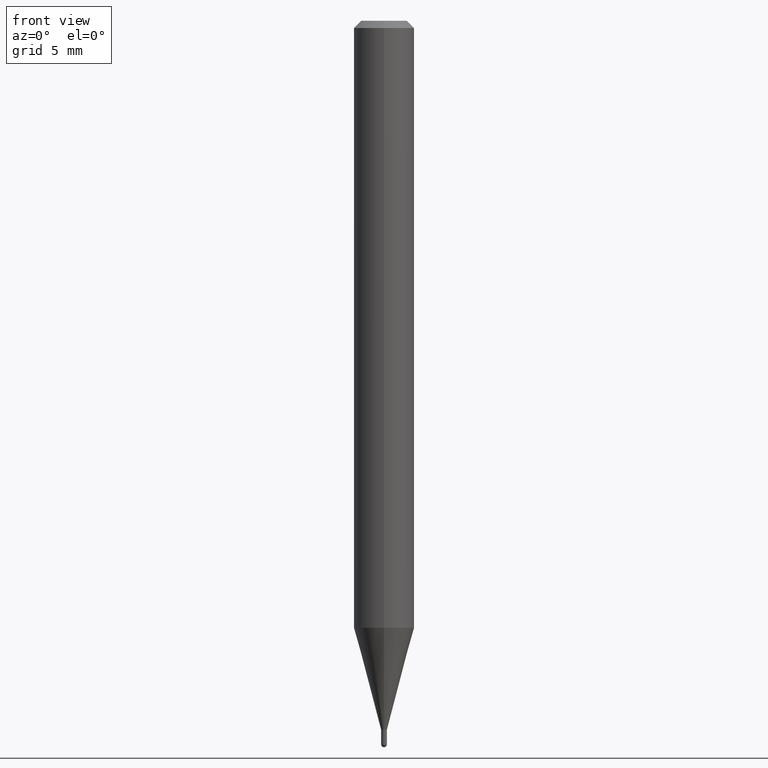
[diagram: clean part render]
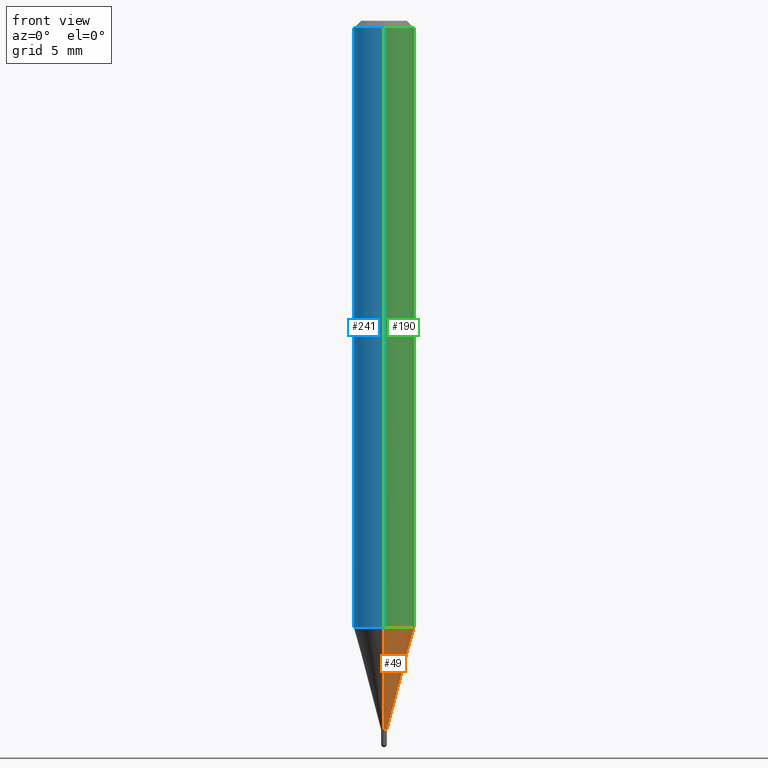
[diagram: same view with three faces highlighted in distinct colors, each labeled with its STEP entity id]
A machine part, front view with three faces highlighted in distinct colors.
Their STEP definitions:

[orange] entity #49 — the highlighted conical surface has half-angle 15 deg.
#4 = DIRECTION ( 'NONE',  ( -1.807323732225378654E-15, -0.2588190451025251249, 0.9659258262890670910 ) ) ;
#6 = AXIS2_PLACEMENT_3D ( 'NONE', #442, #257, #254 ) ;
#17 = CIRCLE ( 'NONE', #124, 0.06250000000000000000 ) ;
#20 = CARTESIAN_POINT ( 'NONE',  ( -4.364351673553611010E-16, -0.06250000000000438538, -1.253139129372365712 ) ) ;
#39 = EDGE_LOOP ( 'NONE', ( #246, #240, #121, #213 ) ) ;
#48 = VERTEX_POINT ( 'NONE', #90 ) ;
#49 = ADVANCED_FACE ( 'NONE', ( #405 ), #271, .T. ) ;
#87 = CIRCLE ( 'NONE', #391, 0.006000000000000197016 ) ;
#89 = DIRECTION ( 'NONE',  ( -2.445470203684064774E-29, 3.491479337545139615E-15, 1.000000000000000000 ) ) ;
#90 = CARTESIAN_POINT ( 'NONE',  ( -4.189777606608316920E-17, -0.006000000000005308379, -1.463999999999999968 ) ) ;
#95 = VERTEX_POINT ( 'NONE', #20 ) ;
#121 = ORIENTED_EDGE ( 'NONE', *, *, #473, .F. ) ;
#124 = AXIS2_PLACEMENT_3D ( 'NONE', #292, #89, #410 ) ;
#132 = CARTESIAN_POINT ( 'NONE',  ( -4.189777606608316920E-17, -0.006000000000005308379, -1.463999999999999968 ) ) ;
#166 = CARTESIAN_POINT ( 'NONE',  ( 3.580168378193471381E-29, -5.111525750166084832E-15, -1.463999999999999968 ) ) ;
#180 = EDGE_CURVE ( 'NONE', #320, #279, #354, .T. ) ;
#213 = ORIENTED_EDGE ( 'NONE', *, *, #437, .F. ) ;
#240 = ORIENTED_EDGE ( 'NONE', *, *, #180, .T. ) ;
#246 = ORIENTED_EDGE ( 'NONE', *, *, #258, .T. ) ;
#254 = DIRECTION ( 'NONE',  ( -6.982962677686266711E-15, -1.000000000000000000, 0.000000000000000000 ) ) ;
#257 = DIRECTION ( 'NONE',  ( -2.445470203684064774E-29, 3.491479337545139615E-15, 1.000000000000000000 ) ) ;
#258 = EDGE_CURVE ( 'NONE', #48, #320, #87, .T. ) ;
#271 = CONICAL_SURFACE ( 'NONE', #6, 0.006000000000000197016, 0.2617993877991574569 ) ;
#277 = VECTOR ( 'NONE', #4, 39.37007874015748854 ) ;
#279 = VERTEX_POINT ( 'NONE', #510 ) ;
#292 = CARTESIAN_POINT ( 'NONE',  ( 3.064514401950711564E-29, -4.375309377272921071E-15, -1.253139129372365934 ) ) ;
#320 = VERTEX_POINT ( 'NONE', #432 ) ;
#333 = LINE ( 'NONE', #132, #277 ) ;
#337 = VECTOR ( 'NONE', #424, 39.37007874015748143 ) ;
#354 = LINE ( 'NONE', #381, #337 ) ;
#381 = CARTESIAN_POINT ( 'NONE',  ( 4.263256414564321176E-17, 0.005999999999995085653, -1.463999999999999968 ) ) ;
#391 = AXIS2_PLACEMENT_3D ( 'NONE', #166, #401, #467 ) ;
#401 = DIRECTION ( 'NONE',  ( -2.445470203684064774E-29, 3.491479337545139615E-15, 1.000000000000000000 ) ) ;
#405 = FACE_OUTER_BOUND ( 'NONE', #39, .T. ) ;
#410 = DIRECTION ( 'NONE',  ( -6.982962677686265922E-15, -1.000000000000000000, 4.370956789862821150E-15 ) ) ;
#424 = DIRECTION ( 'NONE',  ( 1.839019923739649619E-15, 0.2588190451025318972, 0.9659258262890653146 ) ) ;
#432 = CARTESIAN_POINT ( 'NONE',  ( 2.433608869978683522E-16, 0.005999999999995085653, -1.463999999999999968 ) ) ;
#437 = EDGE_CURVE ( 'NONE', #48, #95, #333, .T. ) ;
#442 = CARTESIAN_POINT ( 'NONE',  ( 3.580168378193471381E-29, -5.111525750166084832E-15, -1.463999999999999968 ) ) ;
#467 = DIRECTION ( 'NONE',  ( -6.982962677686266711E-15, -1.000000000000000000, 0.000000000000000000 ) ) ;
#473 = EDGE_CURVE ( 'NONE', #95, #279, #17, .T. ) ;
#510 = CARTESIAN_POINT ( 'NONE',  ( 4.440892098500930859E-16, 0.06249999999999562156, -1.253139129372366156 ) ) ;

[blue] entity #241 — the highlighted cylindrical surface (edge-blend (fillet) strip) has radius 1.5875 mm, axis along (-0, 0, 1).
#20 = CARTESIAN_POINT ( 'NONE',  ( -4.364351673553611010E-16, -0.06250000000000438538, -1.253139129372365712 ) ) ;
#22 = DIRECTION ( 'NONE',  ( -2.445470203684064494E-29, 3.491479337545139221E-15, 1.000000000000000000 ) ) ;
#29 = CARTESIAN_POINT ( 'NONE',  ( 3.668205305526113591E-31, -5.237219006317732571E-17, -0.01500000000000006710 ) ) ;
#37 = DIRECTION ( 'NONE',  ( -6.982962677686265922E-15, -1.000000000000000000, 3.483106191921935554E-15 ) ) ;
#46 = VERTEX_POINT ( 'NONE', #416 ) ;
#95 = VERTEX_POINT ( 'NONE', #20 ) ;
#99 = LINE ( 'NONE', #265, #398 ) ;
#113 = CARTESIAN_POINT ( 'NONE',  ( 3.064514401950711564E-29, -4.375309377272921071E-15, -1.253139129372365934 ) ) ;
#137 = ORIENTED_EDGE ( 'NONE', *, *, #267, .F. ) ;
#138 = AXIS2_PLACEMENT_3D ( 'NONE', #29, #470, #37 ) ;
#146 = CIRCLE ( 'NONE', #138, 0.06250000000000000000 ) ;
#162 = DIRECTION ( 'NONE',  ( -6.982962677686265922E-15, -1.000000000000000000, 4.370956789862821150E-15 ) ) ;
#167 = EDGE_LOOP ( 'NONE', ( #198, #305, #378, #137 ) ) ;
#172 = CARTESIAN_POINT ( 'NONE',  ( 4.440892098500625669E-16, 0.06250000000000000000, -2.182174585965712260E-16 ) ) ;
#174 = VECTOR ( 'NONE', #245, 39.37007874015748143 ) ;
#198 = ORIENTED_EDGE ( 'NONE', *, *, #386, .F. ) ;
#227 = EDGE_CURVE ( 'NONE', #95, #46, #99, .T. ) ;
#241 = ADVANCED_FACE ( 'NONE', ( #476 ), #327, .T. ) ;
#245 = DIRECTION ( 'NONE',  ( -2.445470203684064494E-29, 3.491479337545139221E-15, 1.000000000000000000 ) ) ;
#265 = CARTESIAN_POINT ( 'NONE',  ( -4.364351673553916201E-16, -0.06250000000000000000, 2.182174585965712260E-16 ) ) ;
#267 = EDGE_CURVE ( 'NONE', #326, #46, #146, .T. ) ;
#275 = DIRECTION ( 'NONE',  ( -2.445470203684064774E-29, 3.491479337545139615E-15, 1.000000000000000000 ) ) ;
#279 = VERTEX_POINT ( 'NONE', #510 ) ;
#288 = AXIS2_PLACEMENT_3D ( 'NONE', #113, #275, #162 ) ;
#294 = LINE ( 'NONE', #172, #174 ) ;
#303 = EDGE_CURVE ( 'NONE', #279, #95, #463, .T. ) ;
#305 = ORIENTED_EDGE ( 'NONE', *, *, #303, .T. ) ;
#326 = VERTEX_POINT ( 'NONE', #396 ) ;
#327 = CYLINDRICAL_SURFACE ( 'NONE', #491, 0.06250000000000000000 ) ;
#364 = DIRECTION ( 'NONE',  ( -6.982962677686265922E-15, -1.000000000000000000, 3.491479337545139615E-15 ) ) ;
#378 = ORIENTED_EDGE ( 'NONE', *, *, #227, .T. ) ;
#386 = EDGE_CURVE ( 'NONE', #279, #326, #294, .T. ) ;
#396 = CARTESIAN_POINT ( 'NONE',  ( 4.440892098500933817E-16, 0.06249999999999995143, -0.01500000000000028394 ) ) ;
#398 = VECTOR ( 'NONE', #22, 39.37007874015748143 ) ;
#416 = CARTESIAN_POINT ( 'NONE',  ( -4.364351673553912750E-16, -0.06250000000000005551, -0.01499999999999984852 ) ) ;
#463 = CIRCLE ( 'NONE', #288, 0.06250000000000000000 ) ;
#470 = DIRECTION ( 'NONE',  ( -2.445470203684064774E-29, 3.491479337545139615E-15, 1.000000000000000000 ) ) ;
#472 = DIRECTION ( 'NONE',  ( -2.445470203684064774E-29, 3.491479337545139615E-15, 1.000000000000000000 ) ) ;
#476 = FACE_OUTER_BOUND ( 'NONE', #167, .T. ) ;
#491 = AXIS2_PLACEMENT_3D ( 'NONE', #512, #472, #364 ) ;
#510 = CARTESIAN_POINT ( 'NONE',  ( 4.440892098500930859E-16, 0.06249999999999562156, -1.253139129372366156 ) ) ;
#512 = CARTESIAN_POINT ( 'NONE',  ( 0.000000000000000000, 0.000000000000000000, 0.000000000000000000 ) ) ;

[green] entity #190 — the highlighted cylindrical surface (edge-blend (fillet) strip) has radius 1.5875 mm, axis along (-0, 0, 1).
#2 = ORIENTED_EDGE ( 'NONE', *, *, #386, .T. ) ;
#17 = CIRCLE ( 'NONE', #124, 0.06250000000000000000 ) ;
#20 = CARTESIAN_POINT ( 'NONE',  ( -4.364351673553611010E-16, -0.06250000000000438538, -1.253139129372365712 ) ) ;
#22 = DIRECTION ( 'NONE',  ( -2.445470203684064494E-29, 3.491479337545139221E-15, 1.000000000000000000 ) ) ;
#23 = CARTESIAN_POINT ( 'NONE',  ( 0.000000000000000000, 0.000000000000000000, 0.000000000000000000 ) ) ;
#43 = AXIS2_PLACEMENT_3D ( 'NONE', #443, #368, #407 ) ;
#46 = VERTEX_POINT ( 'NONE', #416 ) ;
#59 = FACE_OUTER_BOUND ( 'NONE', #486, .T. ) ;
#89 = DIRECTION ( 'NONE',  ( -2.445470203684064774E-29, 3.491479337545139615E-15, 1.000000000000000000 ) ) ;
#95 = VERTEX_POINT ( 'NONE', #20 ) ;
#99 = LINE ( 'NONE', #265, #398 ) ;
#119 = ORIENTED_EDGE ( 'NONE', *, *, #400, .F. ) ;
#124 = AXIS2_PLACEMENT_3D ( 'NONE', #292, #89, #410 ) ;
#172 = CARTESIAN_POINT ( 'NONE',  ( 4.440892098500625669E-16, 0.06250000000000000000, -2.182174585965712260E-16 ) ) ;
#174 = VECTOR ( 'NONE', #245, 39.37007874015748143 ) ;
#189 = CYLINDRICAL_SURFACE ( 'NONE', #453, 0.06250000000000000000 ) ;
#190 = ADVANCED_FACE ( 'NONE', ( #59 ), #189, .T. ) ;
#227 = EDGE_CURVE ( 'NONE', #95, #46, #99, .T. ) ;
#245 = DIRECTION ( 'NONE',  ( -2.445470203684064494E-29, 3.491479337545139221E-15, 1.000000000000000000 ) ) ;
#265 = CARTESIAN_POINT ( 'NONE',  ( -4.364351673553916201E-16, -0.06250000000000000000, 2.182174585965712260E-16 ) ) ;
#279 = VERTEX_POINT ( 'NONE', #510 ) ;
#292 = CARTESIAN_POINT ( 'NONE',  ( 3.064514401950711564E-29, -4.375309377272921071E-15, -1.253139129372365934 ) ) ;
#294 = LINE ( 'NONE', #172, #174 ) ;
#317 = DIRECTION ( 'NONE',  ( -2.445470203684064774E-29, 3.491479337545139615E-15, 1.000000000000000000 ) ) ;
#326 = VERTEX_POINT ( 'NONE', #396 ) ;
#368 = DIRECTION ( 'NONE',  ( -2.445470203684064774E-29, 3.491479337545139615E-15, 1.000000000000000000 ) ) ;
#382 = CIRCLE ( 'NONE', #43, 0.06250000000000000000 ) ;
#386 = EDGE_CURVE ( 'NONE', #279, #326, #294, .T. ) ;
#396 = CARTESIAN_POINT ( 'NONE',  ( 4.440892098500933817E-16, 0.06249999999999995143, -0.01500000000000028394 ) ) ;
#398 = VECTOR ( 'NONE', #22, 39.37007874015748143 ) ;
#400 = EDGE_CURVE ( 'NONE', #46, #326, #382, .T. ) ;
#403 = ORIENTED_EDGE ( 'NONE', *, *, #227, .F. ) ;
#407 = DIRECTION ( 'NONE',  ( -6.982962677686265922E-15, -1.000000000000000000, 3.483106191921935554E-15 ) ) ;
#410 = DIRECTION ( 'NONE',  ( -6.982962677686265922E-15, -1.000000000000000000, 4.370956789862821150E-15 ) ) ;
#416 = CARTESIAN_POINT ( 'NONE',  ( -4.364351673553912750E-16, -0.06250000000000005551, -0.01499999999999984852 ) ) ;
#433 = ORIENTED_EDGE ( 'NONE', *, *, #473, .T. ) ;
#443 = CARTESIAN_POINT ( 'NONE',  ( 3.668205305526113591E-31, -5.237219006317732571E-17, -0.01500000000000006710 ) ) ;
#453 = AXIS2_PLACEMENT_3D ( 'NONE', #23, #317, #500 ) ;
#473 = EDGE_CURVE ( 'NONE', #95, #279, #17, .T. ) ;
#486 = EDGE_LOOP ( 'NONE', ( #433, #2, #119, #403 ) ) ;
#500 = DIRECTION ( 'NONE',  ( -6.982962677686265922E-15, -1.000000000000000000, 3.491479337545139615E-15 ) ) ;
#510 = CARTESIAN_POINT ( 'NONE',  ( 4.440892098500930859E-16, 0.06249999999999562156, -1.253139129372366156 ) ) ;